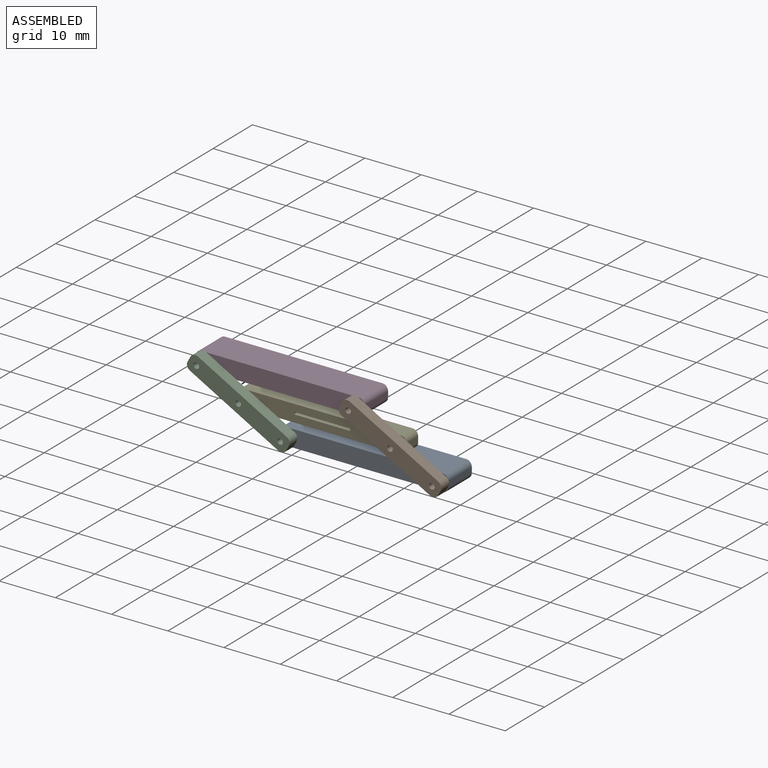
[diagram: assembled view]
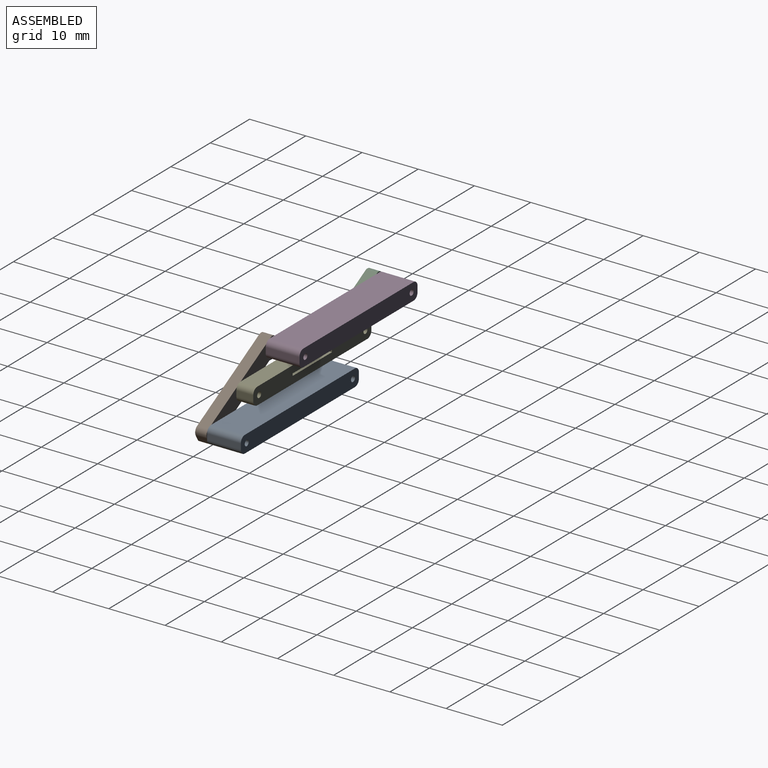
[diagram: assembled view, second angle]
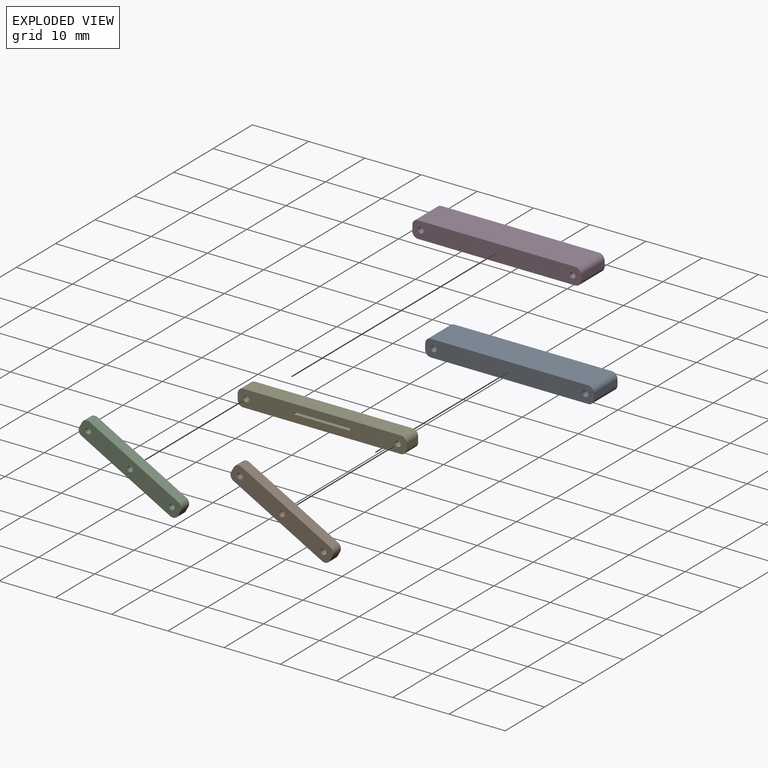
[diagram: exploded view]
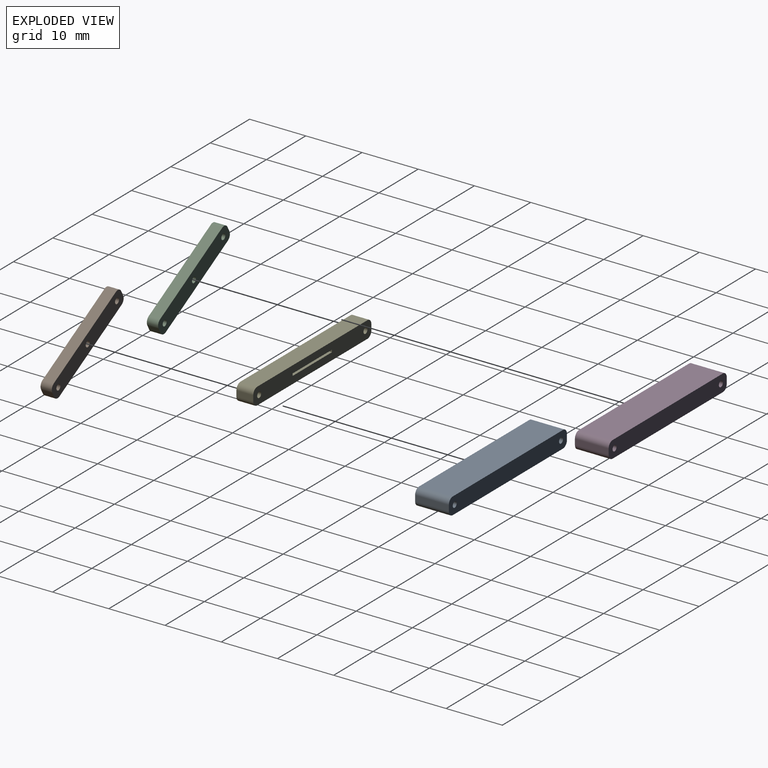
[diagram: exploded view, second angle]
ASSEMBLY  parts=5 mates=10
PART A: 12 faces, bbox 30x6x3 mm
  f0: plane 28x6mm, normal (0,0,1), area 168mm2, adj f6,f7,f8,f11
  f1: plane 6x1mm, normal (-1,0,0), area 6mm2, adj f6,f7,f8,f9
  f2: plane 28x6mm, normal (0,0,-1), area 168mm2, adj f6,f7,f9,f10
  f3: cylinder r=0.5mm len=6mm, axis (0,1,0), area 18.8mm2, adj f6,f7
  f4: cylinder r=0.5mm len=6mm, axis (0,1,0), area 18.8mm2, adj f6,f7
  f5: plane 6x1mm, normal (1,0,0), area 6mm2, adj f6,f7,f10,f11
  f6: plane 30x3mm, normal (0,-1,0), area 87.6mm2, adj f0,f1,f2,f3,f4,f5,f8,f9
  f7: plane 30x3mm, normal (0,1,0), area 87.6mm2, adj f0,f1,f2,f3,f4,f5,f8,f9
  f8: cylinder r=1mm len=6mm, axis (0,-1,0), area 9.4mm2, adj f0,f1,f6,f7
  f9: cylinder r=1mm len=6mm, axis (0,1,0), area 9.4mm2, adj f1,f2,f6,f7
  f10: cylinder r=1mm len=6mm, axis (0,-1,0), area 9.4mm2, adj f2,f5,f6,f7
  f11: cylinder r=1mm len=6mm, axis (0,1,0), area 9.4mm2, adj f0,f5,f6,f7
PART B: 13 faces, bbox 20x2x3 mm
  f0: plane 2x1mm, normal (-1,0,0), area 2mm2, adj f7,f8,f9,f12
  f1: plane 18x2mm, normal (0,0,-1), area 36mm2, adj f7,f8,f9,f10
  f2: plane 2x1mm, normal (1,0,0), area 2mm2, adj f7,f8,f10,f11
  f3: cylinder r=0.5mm len=2mm, axis (0,1,0), area 6.3mm2, adj f7,f8
  f4: cylinder r=0.5mm len=2mm, axis (0,1,0), area 6.3mm2, adj f7,f8
  f5: cylinder r=0.5mm len=2mm, axis (0,1,0), area 6.3mm2, adj f7,f8
  f6: plane 18x2mm, normal (0,0,1), area 36mm2, adj f7,f8,f11,f12
  f7: plane 20x3mm, normal (0,-1,0), area 56.8mm2, adj f0,f1,f2,f3,f4,f5,f6,f9
  f8: plane 20x3mm, normal (0,1,0), area 56.8mm2, adj f0,f1,f2,f3,f4,f5,f6,f9
  f9: cylinder r=1mm len=2mm, axis (0,1,0), area 3.1mm2, adj f0,f1,f7,f8
  f10: cylinder r=1mm len=2mm, axis (0,-1,0), area 3.1mm2, adj f1,f2,f7,f8
  f11: cylinder r=1mm len=2mm, axis (0,1,0), area 3.1mm2, adj f2,f6,f7,f8
  f12: cylinder r=1mm len=2mm, axis (0,-1,0), area 3.1mm2, adj f0,f6,f7,f8
PART C: same geometry as B
PART D: same geometry as A
PART E: 16 faces, bbox 30x3x3 mm
  f0: plane 28x3mm, normal (0,0,1), area 84mm2, adj f10,f11,f12,f15
  f1: plane 3x1mm, normal (-1,0,0), area 3mm2, adj f10,f11,f12,f13
  f2: plane 28x3mm, normal (0,0,-1), area 84mm2, adj f10,f11,f13,f14
  f3: plane 3x0.4mm, normal (1,0,0), area 1.2mm2, adj f4,f6,f10,f11
  f4: plane 10x3mm, normal (0,0,-1), area 30mm2, adj f3,f5,f10,f11
  f5: plane 3x0.4mm, normal (-1,0,0), area 1.2mm2, adj f4,f6,f10,f11
  f6: plane 10x3mm, normal (0,0,1), area 30mm2, adj f3,f5,f10,f11
  f7: cylinder r=0.5mm len=3mm, axis (0,1,0), area 9.4mm2, adj f10,f11
  f8: cylinder r=0.5mm len=3mm, axis (0,1,0), area 9.4mm2, adj f10,f11
  f9: plane 3x1mm, normal (1,0,0), area 3mm2, adj f10,f11,f14,f15
  f10: plane 30x3mm, normal (0,-1,0), area 83.6mm2, adj f0,f1,f2,f3,f4,f5,f6,f7
  f11: plane 30x3mm, normal (0,1,0), area 83.6mm2, adj f0,f1,f2,f3,f4,f5,f6,f7
  f12: cylinder r=1mm len=3mm, axis (0,-1,0), area 4.7mm2, adj f0,f1,f10,f11
  f13: cylinder r=1mm len=3mm, axis (0,1,0), area 4.7mm2, adj f1,f2,f10,f11
  f14: cylinder r=1mm len=3mm, axis (0,-1,0), area 4.7mm2, adj f2,f9,f10,f11
  f15: cylinder r=1mm len=3mm, axis (0,1,0), area 4.7mm2, adj f0,f9,f10,f11
PLACE A t=(22.39,-6.35,-6.47)mm
PLACE B rot(axis=(-0.97,0,0.25),180deg) t=(28.45,-10.35,-2.37)mm
PLACE C rot(axis=(0,-1,0),151.2deg) t=(1.45,-10.35,-2.37)mm
PLACE D t=(7.5,-6.35,1.73)mm
PLACE E t=(14.95,-7.85,-2.37)mm fixed
MATE planar B.f3 <-> E.f10  axis (0,1,0) through (28.45,-9.35,-2.37)mm
MATE planar D.f6 <-> B.f3  axis (0,-1,0) through (7.5,-9.35,1.73)mm
MATE cylindrical C.f3 <-> E.f7  axis (0,1,0) through (1.45,-9.35,-2.37)mm
MATE planar A.f6 <-> B.f3  axis (0,-1,0) through (22.39,-9.35,-6.47)mm
MATE planar E.f10 <-> C.f3  axis (0,-1,0) through (14.95,-9.35,-2.37)mm
MATE cylindrical E.f8 <-> B.f3  axis (0,-1,0) through (28.45,-9.35,-2.37)mm
MATE cylindrical B.f5 <-> D.f4  axis (0,1,0) through (21,-9.35,1.73)mm
MATE cylindrical A.f4 <-> B.f4  axis (0,-1,0) through (35.89,-9.35,-6.47)mm
MATE cylindrical D.f3 <-> C.f4  axis (0,-1,0) through (-6,-9.35,1.73)mm
MATE cylindrical A.f3 <-> C.f5  axis (0,1,0) through (8.89,-9.35,-6.47)mm
